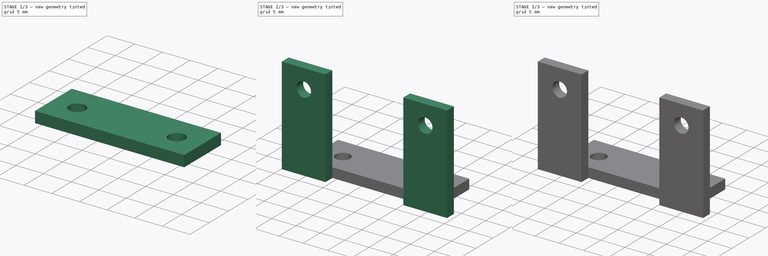
[diagram: build sequence overview — one tinted view per stage of 3, left to right]
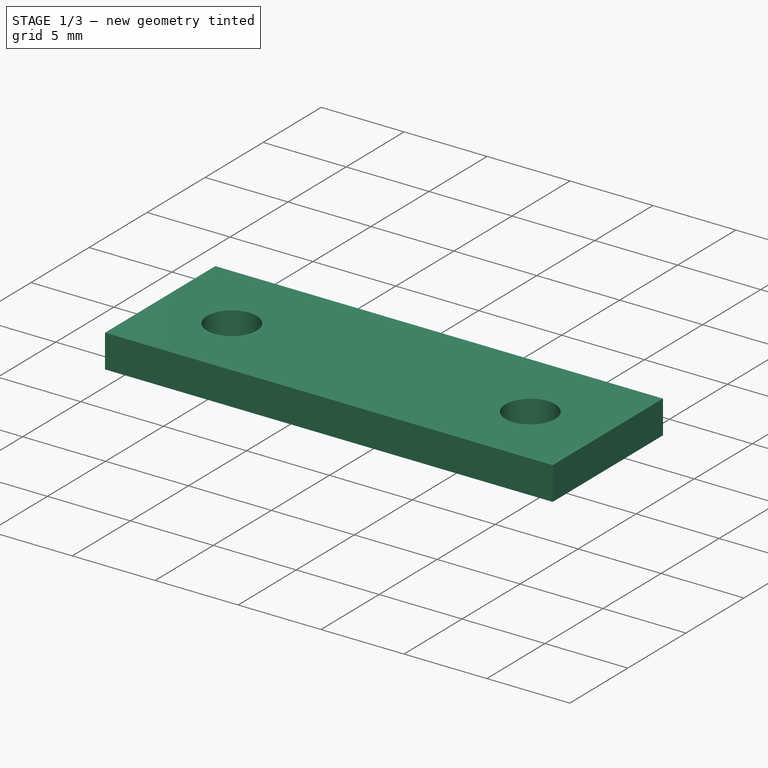
[diagram: stage 1 of 3 — iso view after this stage's code; geometry added in this stage tinted green]
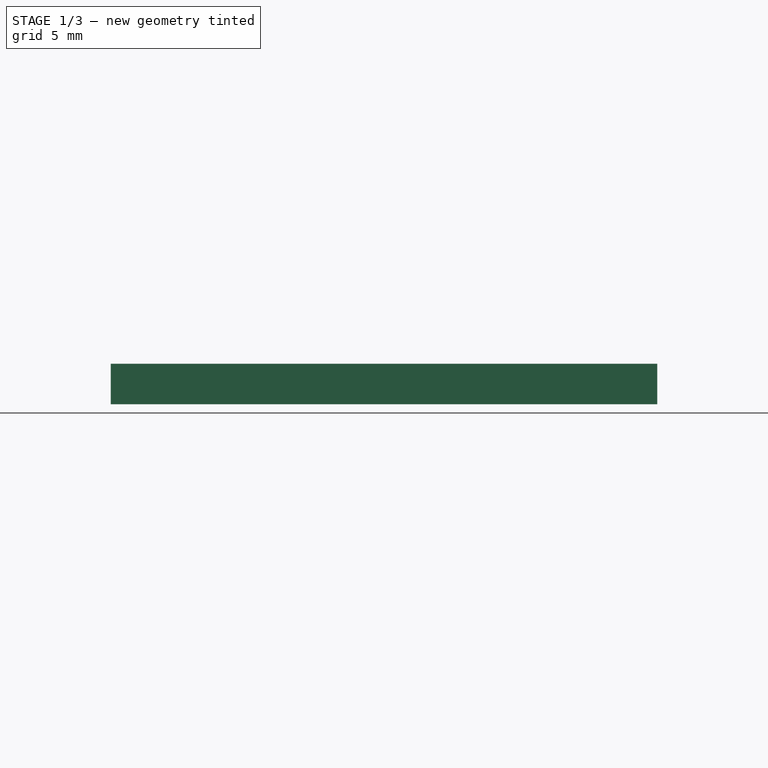
[diagram: stage 1 of 3 — front view after this stage's code; geometry added in this stage tinted green]
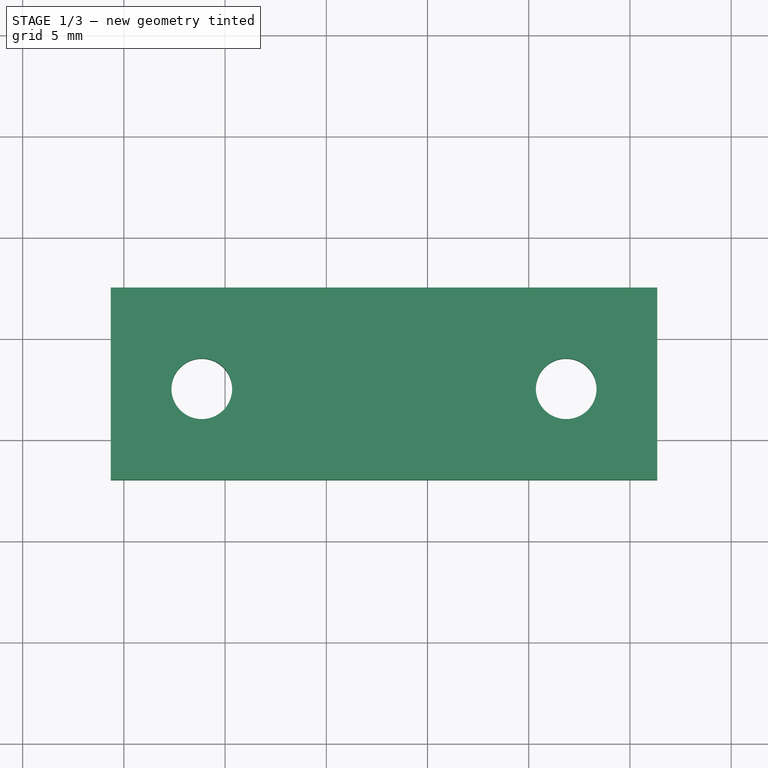
[diagram: stage 1 of 3 — top view after this stage's code; geometry added in this stage tinted green]
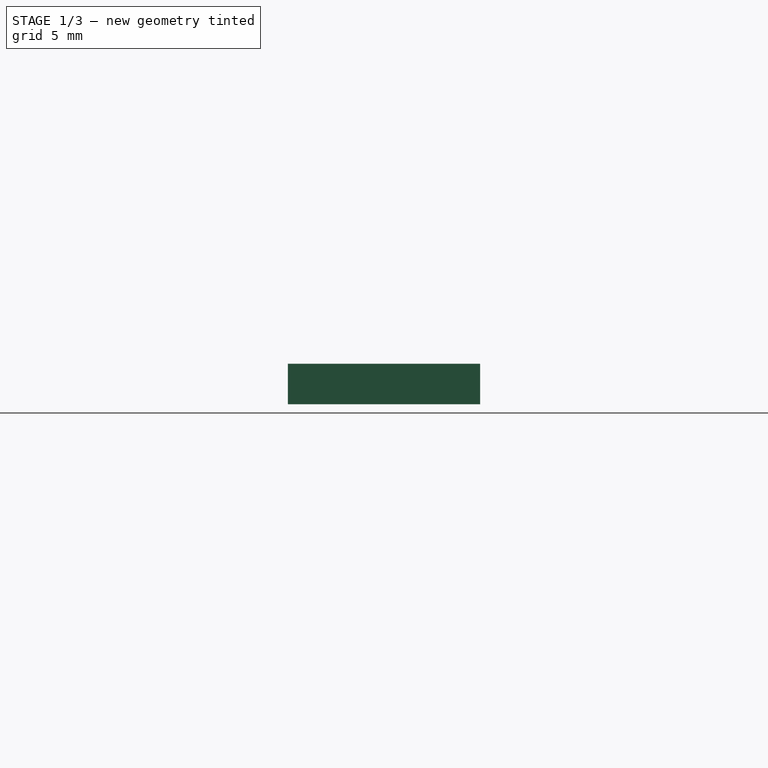
[diagram: stage 1 of 3 — right view after this stage's code; geometry added in this stage tinted green]
FCSTD DOCUMENT  (FreeCAD 0.16R)
Label: support_led
License: All rights reserved
LicenseURL: http://en.wikipedia.org/wiki/All_rights_reserved
objects: Sketcher::SketchObject×6, PartDesign::Pad×3, PartDesign::Chamfer×2, PartDesign::Mirrored×1, PartDesign::Pocket×1
note: 17 computed .brp shape members not serialized (recipe doc carries the construction recipe); baked Part::Feature solids carry a one-line shape summary decoded from their .brp

FEATURE [Sketcher::SketchObject] Sketch
  sketch-geometry (6):
    g0: LineSegment StartX=9.35011 StartY=3.02413 StartZ=0 EndX=36.3501 EndY=3.02413 EndZ=0
    g1: LineSegment StartX=36.3501 StartY=3.02413 StartZ=0 EndX=36.3501 EndY=12.5241 EndZ=0
    g2: LineSegment StartX=36.3501 StartY=12.5241 StartZ=0 EndX=9.35011 EndY=12.5241 EndZ=0
    g3: LineSegment StartX=9.35011 StartY=12.5241 StartZ=0 EndX=9.35011 EndY=3.02413 EndZ=0
    g4: Circle CenterX=13.8501 CenterY=7.52413 CenterZ=0 NormalX=0 NormalY=0 NormalZ=1 Radius=1.5
    g5: Circle CenterX=31.8501 CenterY=7.52413 CenterZ=0 NormalX=0 NormalY=0 NormalZ=1 Radius=1.5
  constraints (16):
    c: Coincident(g0,g1)
    c: Coincident(g1,g2)
    c: Coincident(g2,g3)
    c: Coincident(g3,g0)
    c: Horizontal(g0)
    c: Horizontal(g2)
    c: Vertical(g1)
    c: Vertical(g3)
    c: DistanceX(g0,g0) = 27
    c: DistanceY(g3,g3) = 9.5
    c: Radius(g4) = 1.5
    c: Distance(g4,g0) = 4.5
    c: Distance(g4,g3) = 4.5
    c: Radius(g5) = 1.5
    c: Distance(g5,g0) = 4.5
    c: DistanceX(g4,g5) = 18
FEATURE [PartDesign::Pad] Pad
  Length = 2
  Length2 = 100
  Sketch = -> Sketch
  Type = 0
FEATURE [PartDesign::Mirrored] Mirrored
  MirrorPlane = -> Sketch [V_Axis]
  Originals = -> [Pad]
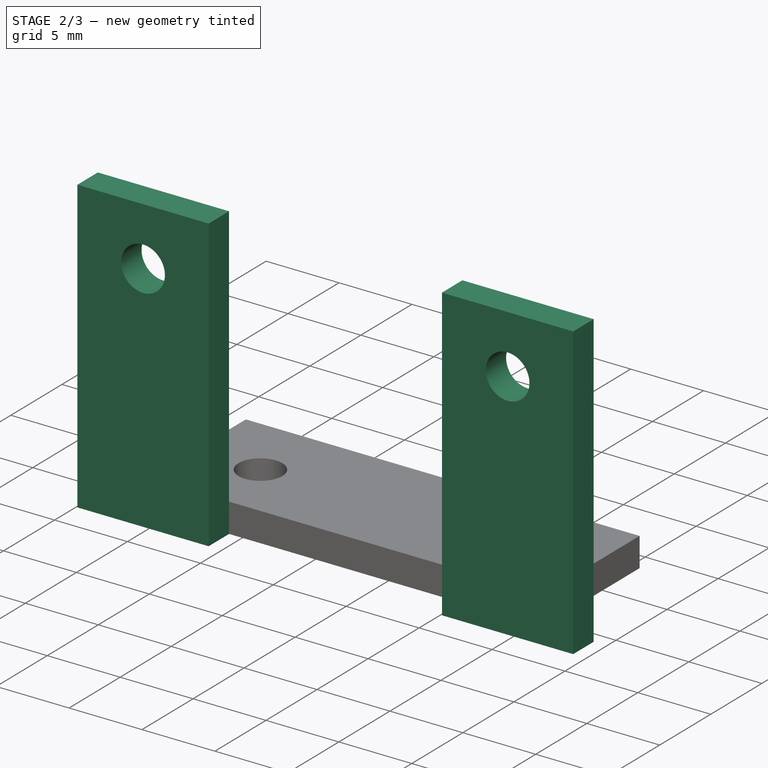
[diagram: stage 2 of 3 — iso view after this stage's code; geometry added in this stage tinted green]
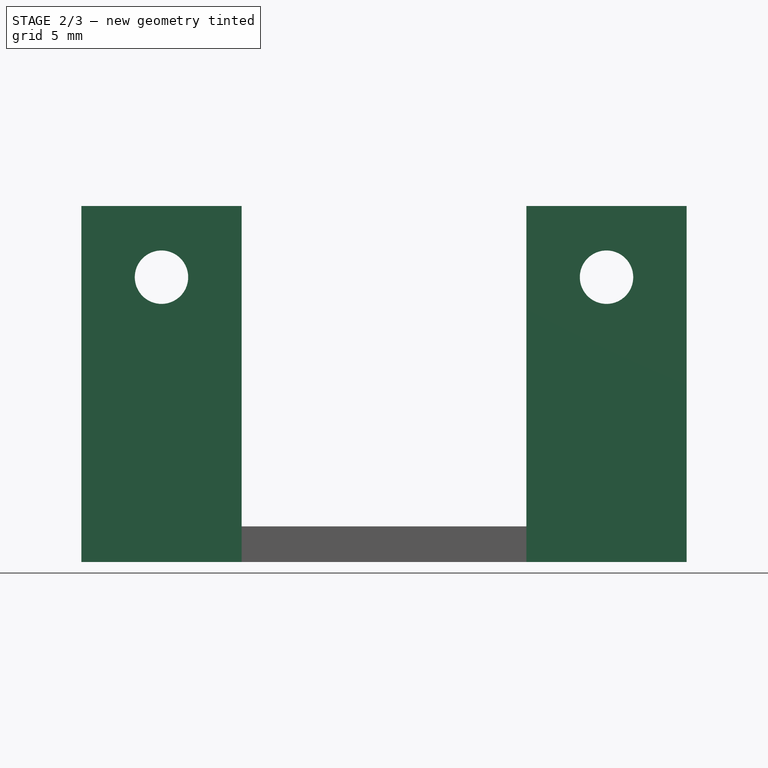
[diagram: stage 2 of 3 — front view after this stage's code; geometry added in this stage tinted green]
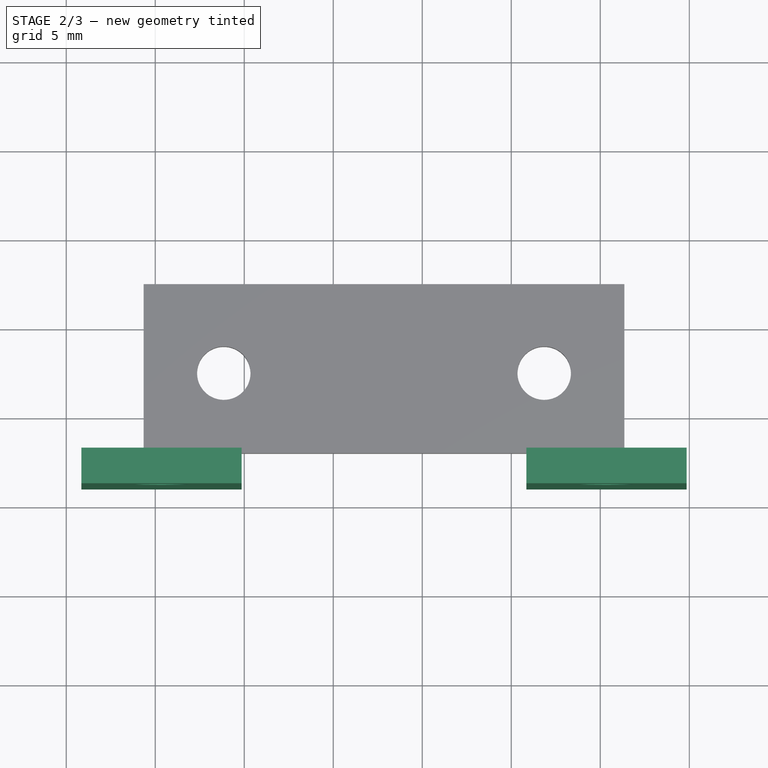
[diagram: stage 2 of 3 — top view after this stage's code; geometry added in this stage tinted green]
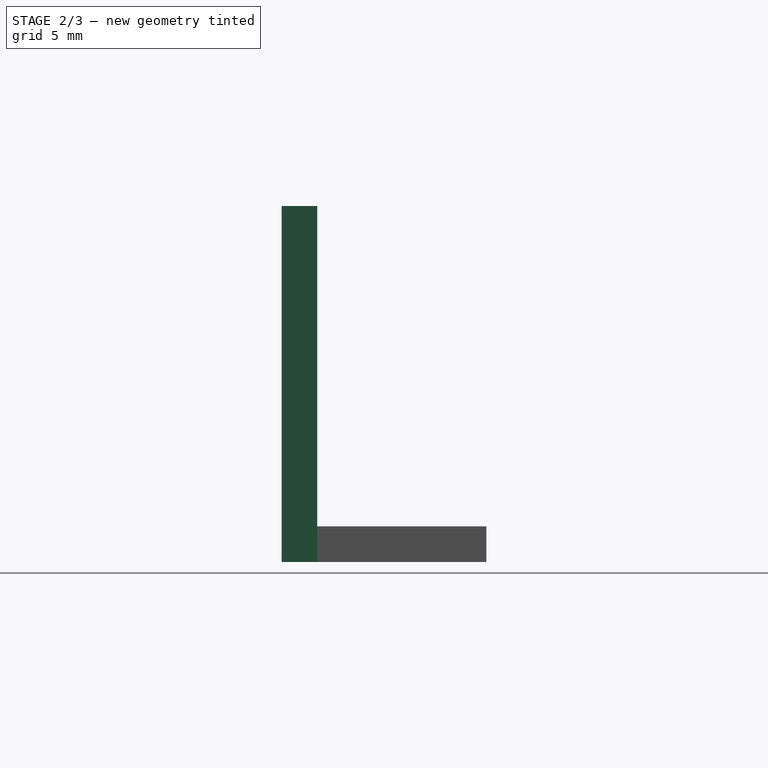
[diagram: stage 2 of 3 — right view after this stage's code; geometry added in this stage tinted green]
FEATURE [Sketcher::SketchObject] Sketch001
  ExternalGeometry = -> [Mirrored]
  Placement = pos=(0,3.02413,0) rot=(1,0,0;1.5708rad)
  Support = -> Mirrored [Face1]
  sketch-geometry (8):
    g0: LineSegment StartX=5.85011 StartY=2 StartZ=0 EndX=14.8501 EndY=2 EndZ=0
    g1: LineSegment StartX=14.8501 StartY=2 StartZ=0 EndX=14.8501 EndY=0 EndZ=0
    g2: LineSegment StartX=14.8501 StartY=0 StartZ=0 EndX=5.85011 EndY=0 EndZ=0
    g3: LineSegment StartX=5.85011 StartY=0 StartZ=0 EndX=5.85011 EndY=2 EndZ=0
    g4: LineSegment StartX=30.8501 StartY=2 StartZ=0 EndX=39.8501 EndY=2 EndZ=0
    g5: LineSegment StartX=39.8501 StartY=2 StartZ=0 EndX=39.8501 EndY=0 EndZ=0
    g6: LineSegment StartX=39.8501 StartY=0 StartZ=0 EndX=30.8501 EndY=0 EndZ=0
    g7: LineSegment StartX=30.8501 StartY=0 StartZ=0 EndX=30.8501 EndY=2 EndZ=0
  constraints (24):
    c: Coincident(g0,g1)
    c: Coincident(g1,g2)
    c: Coincident(g2,g3)
    c: Coincident(g3,g0)
    c: Horizontal(g0)
    c: Horizontal(g2)
    c: Vertical(g1)
    c: Vertical(g3)
    c: PointOnObject(g0,g-4)
    c: PointOnObject(g1,g-5)
    c: Distance(g0,g3) = 9
    c: Distance(g-4,g3) = 3.5
    c: Coincident(g4,g5)
    c: Coincident(g5,g6)
    c: Coincident(g6,g7)
    c: Coincident(g7,g4)
    c: Horizontal(g4)
    c: Horizontal(g6)
    c: Vertical(g5)
    c: Vertical(g7)
    c: PointOnObject(g4,g-4)
    c: PointOnObject(g6,g-5)
    c: Distance(g4,g5) = 9
    c: Distance(g-6,g5) = 3.5
FEATURE [PartDesign::Pad] Pad001
  Length = 2
  Length2 = 100
  Sketch = -> Sketch001
  Type = 0
FEATURE [Sketcher::SketchObject] Sketch002
  ExternalGeometry = -> [Pad001]
  Placement = pos=(0,0,2) rot=(0,0,1;0rad)
  Support = -> Pad001 [Face13]
  sketch-geometry (8):
    g0: LineSegment StartX=5.85011 StartY=3.02413 StartZ=0 EndX=14.8501 EndY=3.02413 EndZ=0
    g1: LineSegment StartX=14.8501 StartY=3.02413 StartZ=0 EndX=14.8501 EndY=1.02413 EndZ=0
    g2: LineSegment StartX=14.8501 StartY=1.02413 StartZ=0 EndX=5.85011 EndY=1.02413 EndZ=0
    g3: LineSegment StartX=5.85011 StartY=1.02413 StartZ=0 EndX=5.85011 EndY=3.02413 EndZ=0
    g4: LineSegment StartX=30.8501 StartY=3.02413 StartZ=0 EndX=39.8501 EndY=3.02413 EndZ=0
    g5: LineSegment StartX=39.8501 StartY=3.02413 StartZ=0 EndX=39.8501 EndY=1.02413 EndZ=0
    g6: LineSegment StartX=39.8501 StartY=1.02413 StartZ=0 EndX=30.8501 EndY=1.02413 EndZ=0
    g7: LineSegment StartX=30.8501 StartY=1.02413 StartZ=0 EndX=30.8501 EndY=3.02413 EndZ=0
  constraints (20):
    c: Coincident(g0,g1)
    c: Coincident(g1,g2)
    c: Coincident(g2,g3)
    c: Coincident(g3,g0)
    c: Horizontal(g0)
    c: Horizontal(g2)
    c: Vertical(g1)
    c: Vertical(g3)
    c: Coincident(g4,g5)
    c: Coincident(g5,g6)
    c: Coincident(g6,g7)
    c: Coincident(g7,g4)
    c: Horizontal(g4)
    c: Horizontal(g6)
    c: Vertical(g5)
    c: Vertical(g7)
    c: Coincident(g0,g-3)
    c: Coincident(g-4,g1)
    c: Coincident(g6,g-5)
    c: Coincident(g4,g-6)
FEATURE [Sketcher::SketchObject] Sketch003
  Placement = pos=(0,0,2) rot=(0,0,1;0rad)
  Support = -> Pad001 [Face13]
FEATURE [Sketcher::SketchObject] Sketch004
  ExternalGeometry = -> [Pad001]
  Placement = pos=(0,0,2) rot=(0,0,1;0rad)
  Support = -> Pad001 [Face13]
  sketch-geometry (8):
    g0: LineSegment StartX=5.85011 StartY=3.02413 StartZ=0 EndX=14.8501 EndY=3.02413 EndZ=0
    g1: LineSegment StartX=14.8501 StartY=3.02413 StartZ=0 EndX=14.8501 EndY=1.02413 EndZ=0
    g2: LineSegment StartX=14.8501 StartY=1.02413 StartZ=0 EndX=5.85011 EndY=1.02413 EndZ=0
    g3: LineSegment StartX=5.85011 StartY=1.02413 StartZ=0 EndX=5.85011 EndY=3.02413 EndZ=0
    g4: LineSegment StartX=39.8501 StartY=1.02413 StartZ=0 EndX=30.8501 EndY=1.02413 EndZ=0
    g5: LineSegment StartX=30.8501 StartY=1.02413 StartZ=0 EndX=30.8501 EndY=3.02413 EndZ=0
    g6: LineSegment StartX=30.8501 StartY=3.02413 StartZ=0 EndX=39.8501 EndY=3.02413 EndZ=0
    g7: LineSegment StartX=39.8501 StartY=3.02413 StartZ=0 EndX=39.8501 EndY=1.02413 EndZ=0
  constraints (20):
    c: Coincident(g0,g1)
    c: Coincident(g1,g2)
    c: Coincident(g2,g3)
    c: Coincident(g3,g0)
    c: Horizontal(g0)
    c: Horizontal(g2)
    c: Vertical(g1)
    c: Vertical(g3)
    c: Coincident(g4,g5)
    c: Coincident(g5,g6)
    c: Coincident(g6,g7)
    c: Coincident(g7,g4)
    c: Horizontal(g4)
    c: Horizontal(g6)
    c: Vertical(g5)
    c: Vertical(g7)
    c: Coincident(g0,g-3)
    c: Coincident(g1,g-6)
    c: Coincident(g4,g-5)
    c: Coincident(g-4,g6)
FEATURE [PartDesign::Pad] Pad002
  Length = 18
  Length2 = 100
  Sketch = -> Sketch004
  Type = 0
FEATURE [Sketcher::SketchObject] Sketch005
  ExternalGeometry = -> [Pad002]
  Placement = pos=(0,1.02413,0) rot=(1,0,0;1.5708rad)
  Support = -> Pad002 [Face27]
  sketch-geometry (2):
    g0: Circle CenterX=10.3501 CenterY=16 CenterZ=0 NormalX=0 NormalY=0 NormalZ=1 Radius=1.5
    g1: Circle CenterX=35.3501 CenterY=16 CenterZ=0 NormalX=0 NormalY=0 NormalZ=1 Radius=1.5
  constraints (6):
    c: Radius(g0) = 1.5
    c: Equal(g0,g1)
    c: Distance(g0,g-3) = 14
    c: Distance(g0,g-4) = 4.5
    c: Distance(g1,g-5) = 4.5
    c: Distance(g1,g-6) = 14
FEATURE [PartDesign::Pocket] Pocket
  Length = 2
  Sketch = -> Sketch005
  Type = 0
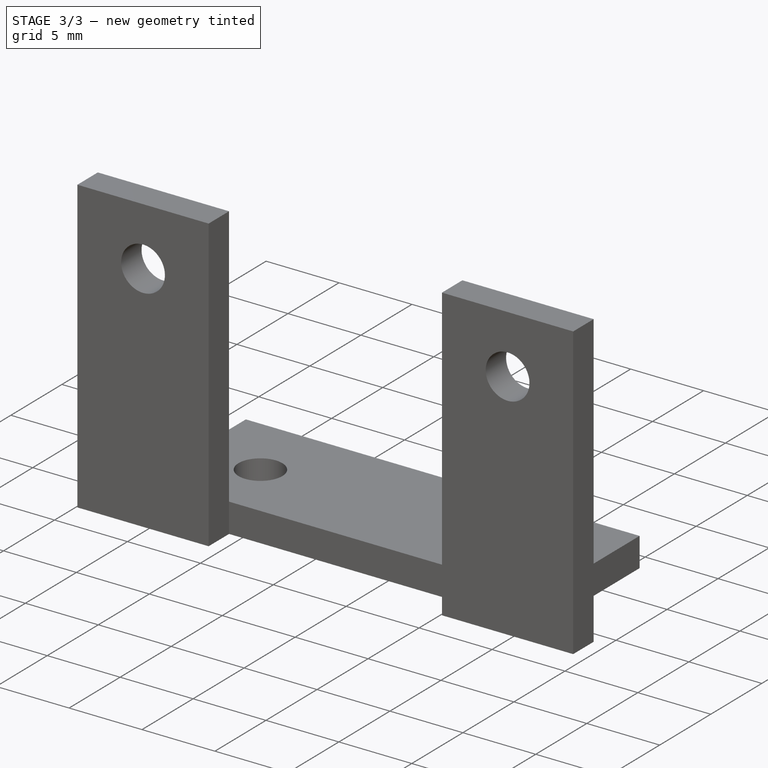
[diagram: stage 3 of 3 — iso view after this stage's code; geometry added in this stage tinted green]
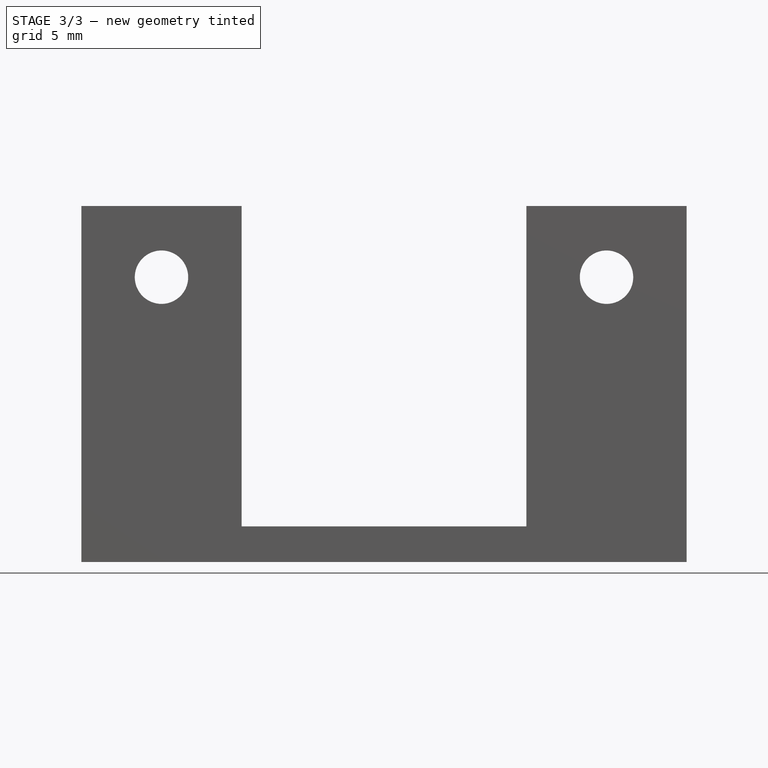
[diagram: stage 3 of 3 — front view after this stage's code; geometry added in this stage tinted green]
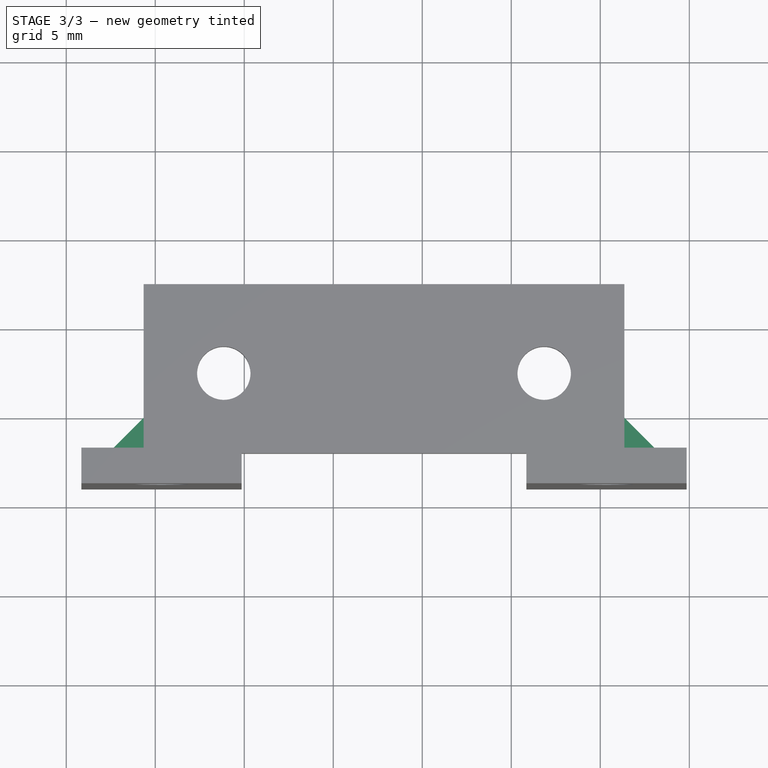
[diagram: stage 3 of 3 — top view after this stage's code; geometry added in this stage tinted green]
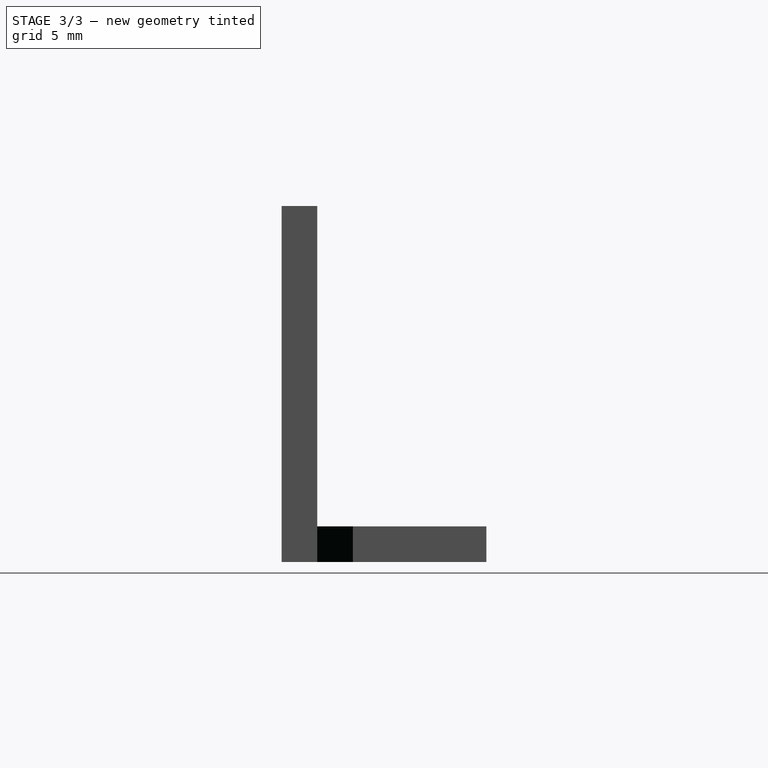
[diagram: stage 3 of 3 — right view after this stage's code; geometry added in this stage tinted green]
FEATURE [PartDesign::Chamfer] Chamfer
  Base = -> Pocket [Edge10]
  Size = 2
FEATURE [PartDesign::Chamfer] Chamfer001
  Base = -> Chamfer [Edge29]
  Size = 2
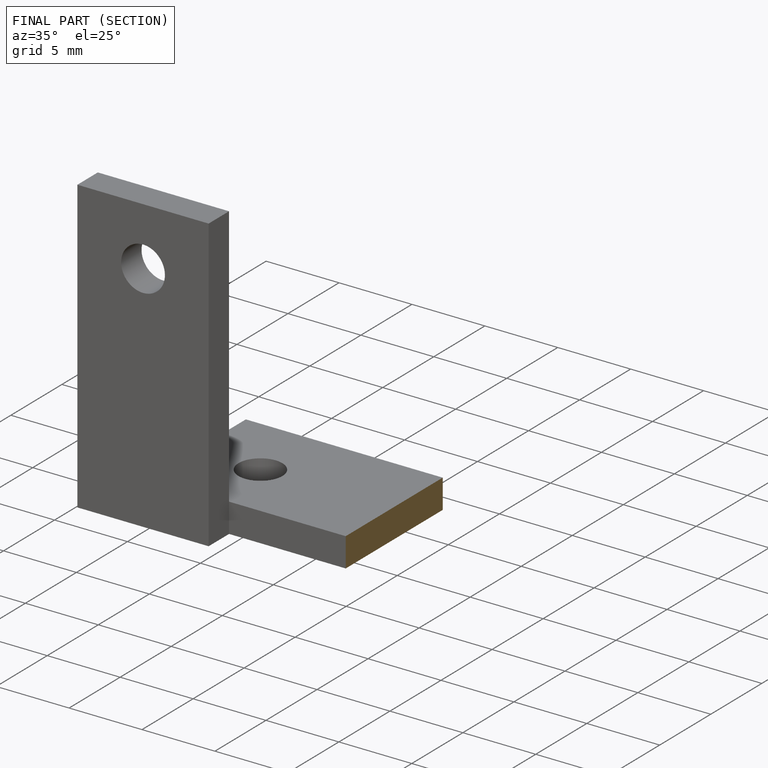
[diagram: finished part — half-section view (interior)]
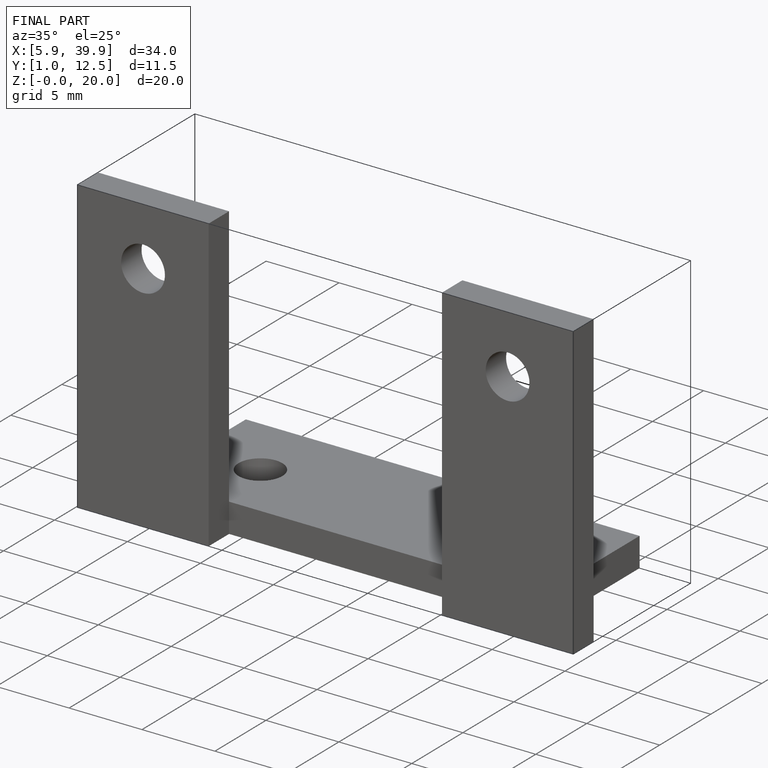
[diagram: finished part — iso view with bounding-box wireframe]
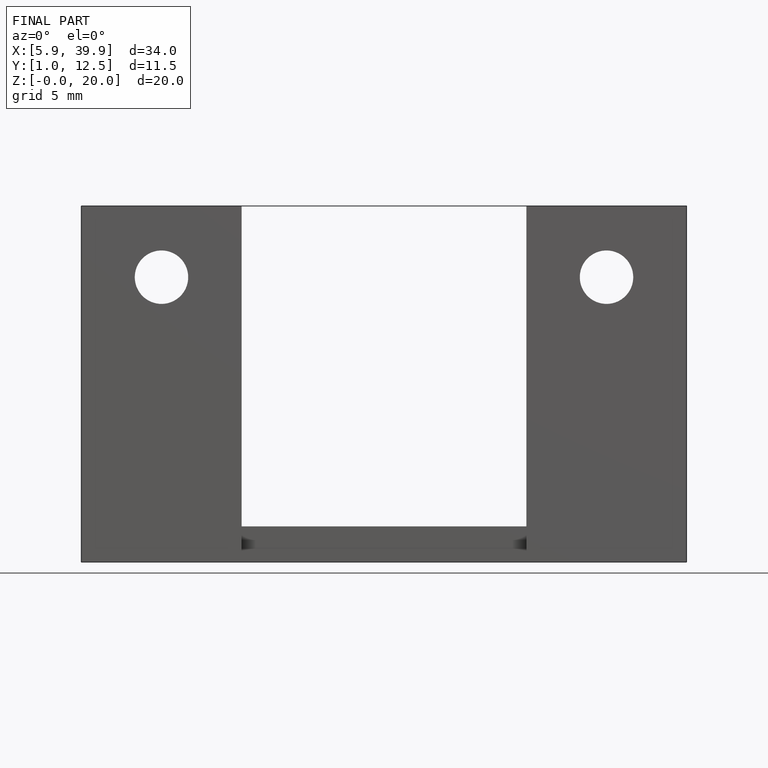
[diagram: finished part — front view with bounding-box wireframe]
